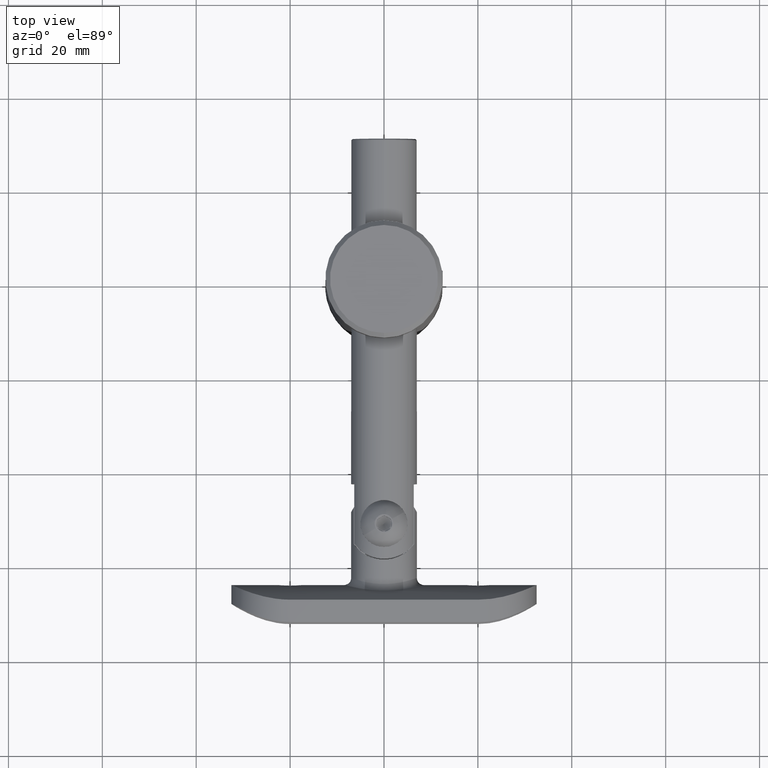
[diagram: clean part render]
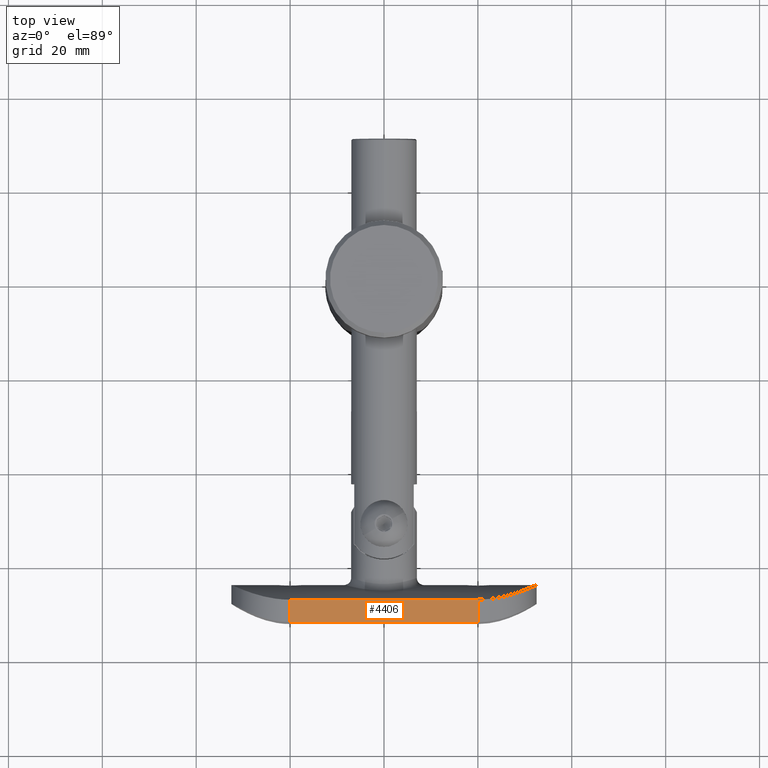
[diagram: same view with one face highlighted and labeled with its STEP entity id]
A machine part, top view. The second image highlights one B-rep face of the part: STEP entity #4406.
In plain terms, the highlighted planar face has unit normal (-0, -0, -1).
Its self-contained STEP definition (entity closure, byte-faithful):
#3 = ORIENTED_EDGE ( 'NONE', *, *, #4751, .T. ) ;
#90 = CARTESIAN_POINT ( 'NONE',  ( -12.49999999999999645, 8.077208171562682892, 32.50000000000006395 ) ) ;
#295 = DIRECTION ( 'NONE',  ( 0.000000000000000000, 0.000000000000000000, -1.000000000000000000 ) ) ;
#516 = EDGE_CURVE ( 'NONE', #6899, #1200, #11149, .T. ) ;
#615 = CARTESIAN_POINT ( 'NONE',  ( -12.49999999999999645, 3.318729470161013495, 32.50000000000006395 ) ) ;
#1200 = VERTEX_POINT ( 'NONE', #17901 ) ;
#2286 = VECTOR ( 'NONE', #20836, 1000.000000000000000 ) ;
#4406 = ADVANCED_FACE ( 'NONE', ( #17012 ), #10081, .F. ) ;
#4581 = VECTOR ( 'NONE', #8389, 1000.000000000000000 ) ;
#4751 = EDGE_CURVE ( 'NONE', #19724, #6899, #13977, .T. ) ;
#5126 = CARTESIAN_POINT ( 'NONE',  ( -12.49999999999999645, 8.077208171562682892, 20.00000000000000000 ) ) ;
#5204 = CARTESIAN_POINT ( 'NONE',  ( -12.49999999999999645, 8.077208171562682892, 32.50000000000006395 ) ) ;
#5754 = VECTOR ( 'NONE', #8260, 1000.000000000000000 ) ;
#5808 = EDGE_CURVE ( 'NONE', #19724, #7475, #17512, .T. ) ;
#6432 = CARTESIAN_POINT ( 'NONE',  ( -12.49999999999999645, 8.077208171562682892, -20.00000000000000355 ) ) ;
#6735 = DIRECTION ( 'NONE',  ( 1.000000000000000000, 0.000000000000000000, 0.000000000000000000 ) ) ;
#6899 = VERTEX_POINT ( 'NONE', #5126 ) ;
#7475 = VERTEX_POINT ( 'NONE', #14743 ) ;
#7980 = ORIENTED_EDGE ( 'NONE', *, *, #516, .T. ) ;
#8260 = DIRECTION ( 'NONE',  ( 0.000000000000000000, -1.000000000000000000, 0.000000000000000000 ) ) ;
#8389 = DIRECTION ( 'NONE',  ( 0.000000000000000000, 0.000000000000000000, -1.000000000000000000 ) ) ;
#10081 = PLANE ( 'NONE',  #12131 ) ;
#11149 = LINE ( 'NONE', #5204, #18464 ) ;
#11566 = CARTESIAN_POINT ( 'NONE',  ( -12.49999999999999645, 3.318729470161013495, 20.00000000000000000 ) ) ;
#12131 = AXIS2_PLACEMENT_3D ( 'NONE', #90, #6735, #295 ) ;
#13977 = LINE ( 'NONE', #19197, #2286 ) ;
#14743 = CARTESIAN_POINT ( 'NONE',  ( -12.49999999999999645, 3.318729470161013495, -20.00000000000000355 ) ) ;
#15035 = EDGE_LOOP ( 'NONE', ( #7980, #15076, #18143, #3 ) ) ;
#15076 = ORIENTED_EDGE ( 'NONE', *, *, #16787, .T. ) ;
#16421 = LINE ( 'NONE', #6432, #5754 ) ;
#16787 = EDGE_CURVE ( 'NONE', #1200, #7475, #16421, .T. ) ;
#17012 = FACE_OUTER_BOUND ( 'NONE', #15035, .T. ) ;
#17512 = LINE ( 'NONE', #615, #4581 ) ;
#17901 = CARTESIAN_POINT ( 'NONE',  ( -12.49999999999999645, 8.077208171562682892, -20.00000000000000355 ) ) ;
#18143 = ORIENTED_EDGE ( 'NONE', *, *, #5808, .F. ) ;
#18464 = VECTOR ( 'NONE', #19883, 1000.000000000000000 ) ;
#19197 = CARTESIAN_POINT ( 'NONE',  ( -12.49999999999999645, 8.077208171562682892, 20.00000000000000000 ) ) ;
#19724 = VERTEX_POINT ( 'NONE', #11566 ) ;
#19883 = DIRECTION ( 'NONE',  ( 0.000000000000000000, 0.000000000000000000, -1.000000000000000000 ) ) ;
#20836 = DIRECTION ( 'NONE',  ( -0.000000000000000000, 1.000000000000000000, -0.000000000000000000 ) ) ;